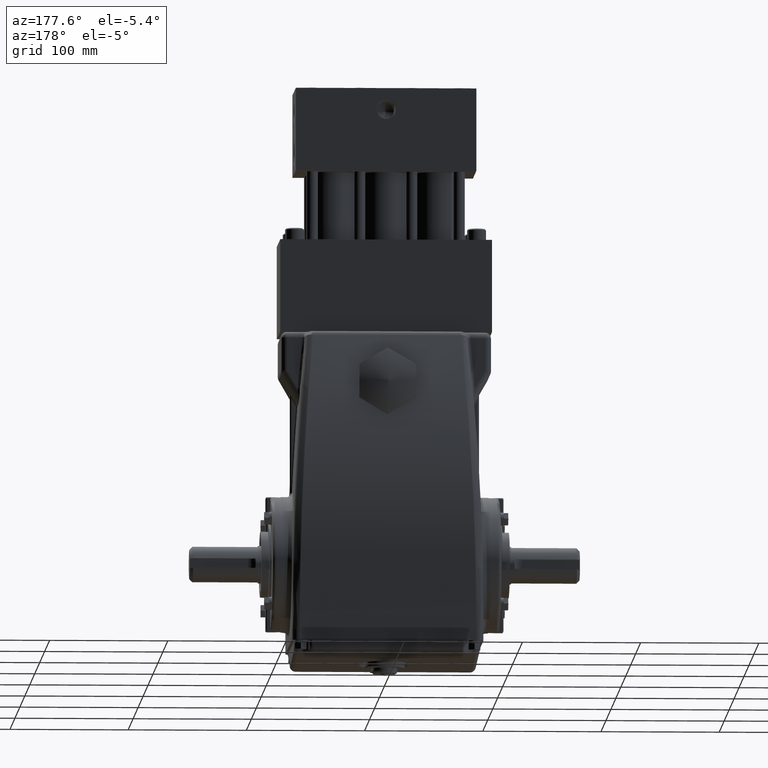
[diagram: clean part render]
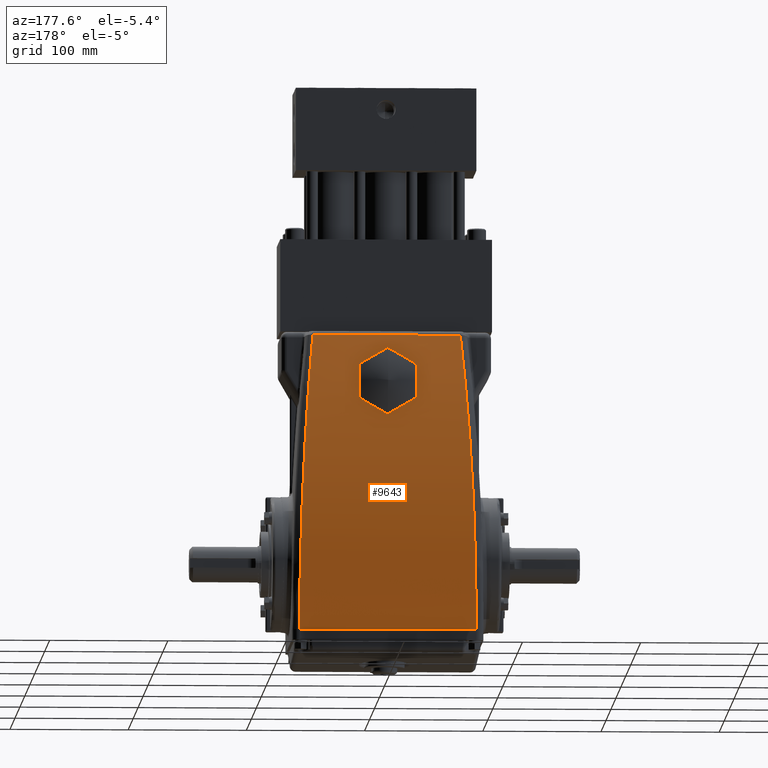
[diagram: same view with one face highlighted and labeled with its STEP entity id]
A machine part, auxiliary view. The second image highlights one B-rep face of the part: STEP entity #9643.
In plain terms, the highlighted cylindrical surface (partial cylindrical patch) has radius 639.229 mm, axis along (-1, -0, -0).
Its self-contained STEP definition (entity closure, byte-faithful):
#932 = EDGE_CURVE ( 'NONE', #5242, #933, #1359, .T. ) ;
#933 = VERTEX_POINT ( 'NONE', #1472 ) ;
#1184 = CARTESIAN_POINT ( 'NONE',  ( 0.8517757934792370400, 2.108280801860137600, 6.240792064630820600 ) ) ;
#1185 = CARTESIAN_POINT ( 'NONE',  ( 0.8181005592304403400, 2.087445381848458800, 6.322587077053034600 ) ) ;
#1186 = CARTESIAN_POINT ( 'NONE',  ( 0.7906391897728420900, 2.074063540767611800, 6.374358569648427100 ) ) ;
#1187 = CARTESIAN_POINT ( 'NONE',  ( 0.7419868299988811000, 2.054822962315945700, 6.447928650192186400 ) ) ;
#1188 = CARTESIAN_POINT ( 'NONE',  ( 0.7245173621476173100, 2.048549231577400300, 6.471766124279536600 ) ) ;
#1189 = CARTESIAN_POINT ( 'NONE',  ( 0.6869725999985825100, 2.036307987381356100, 6.518017488258418100 ) ) ;
#1190 = CARTESIAN_POINT ( 'NONE',  ( 0.6670991163208193100, 2.030409233493891500, 6.540171307052260000 ) ) ;
#1191 = CARTESIAN_POINT ( 'NONE',  ( 0.6046602473001231300, 2.013516503278723200, 6.603300938477125300 ) ) ;
#1192 = CARTESIAN_POINT ( 'NONE',  ( 0.5591324411271533200, 2.003261442565714900, 6.641190798329227500 ) ) ;
#1193 = CARTESIAN_POINT ( 'NONE',  ( 0.4847740287326998700, 1.989539841771109000, 6.691526486774064300 ) ) ;
#1194 = CARTESIAN_POINT ( 'NONE',  ( 0.4589020535937435300, 1.985239999719667000, 6.707230682562213000 ) ) ;
#1195 = CARTESIAN_POINT ( 'NONE',  ( 0.4062093949515993000, 1.977409396986109500, 6.735739667880783300 ) ) ;
#1196 = CARTESIAN_POINT ( 'NONE',  ( 0.3792605186048826900, 1.973852460362665700, 6.748640741269107400 ) ) ;
#1197 = CARTESIAN_POINT ( 'NONE',  ( 0.3241661716206601400, 1.967462945642187000, 6.771758641777292800 ) ) ;
#1198 = CARTESIAN_POINT ( 'NONE',  ( 0.2960207399706006300, 1.964630326790882000, 6.781975551621597400 ) ) ;
#1199 = CARTESIAN_POINT ( 'NONE',  ( 0.2528850248207239500, 1.960944824598500800, 6.795244794540070500 ) ) ;
#1353 = CARTESIAN_POINT ( 'NONE',  ( 0.2383532470191971600, 1.959810381822061600, 6.799324560531388800 ) ) ;
#1354 = CARTESIAN_POINT ( 'NONE',  ( 0.2089763331113513000, 1.957734985545953200, 6.806782203186477500 ) ) ;
#1355 = CARTESIAN_POINT ( 'NONE',  ( 0.1941285703221399500, 1.956794706008779400, 6.810157645767736400 ) ) ;
#1356 = CARTESIAN_POINT ( 'NONE',  ( 0.1199666194510869100, 1.952635561640561100, 6.825078899672415200 ) ) ;
#1357 = CARTESIAN_POINT ( 'NONE',  ( 0.06019901345989764300, 1.950978026408409100, 6.831000000000002200 ) ) ;
#1358 = CARTESIAN_POINT ( 'NONE',  ( 1.113167175992111200E-016, 1.950978026408414000, 6.831000000000001300 ) ) ;
#1359 = B_SPLINE_CURVE_WITH_KNOTS ( 'NONE', 3,
 ( #1358, #1357, #1356, #1355, #1354, #1353, #1199, #1198, #1197, #1196, #1195, #1194, #1193, #1192, #1191, #1190, #1189, #1188, #1187, #1186, #1185, #1184, #1508, #1469, #1445, #1525, #1548, #1547, #1394, #1510, #1497, #1424, #1483, #1468, #1537, #1536, #1535, #1534, #1531, #1529, #1528, #1453, #1452, #1451, #1450, #1449, #1448, #1447, #1446, #1476, #1475, #1474, #1473 ),
 .UNSPECIFIED., .F., .F.,
 ( 4, 2, 2, 2, 2, 2, 2, 2, 2, 2, 2, 2, 2, 2, 2, 2, 2, 2, 2, 2, 2, 2, 2, 1, 2, 2, 4 ),
 ( 0.07323747432878095800, 0.07781312574359033900, 0.07895703859729268100, 0.08010095145099502300, 0.08238877715839969300, 0.08467660286580437600, 0.08696442857320906000, 0.09154007998801841400, 0.09382790569542306900, 0.09611573140282772500, 0.1006913828176370900, 0.1029792085250418200, 0.1052670342324465400, 0.1075548599398512800, 0.1098426856472559900, 0.1144183370620654600, 0.1167061627694701800, 0.1189939884768749000, 0.1235696398916842600, 0.1258574655990890000, 0.1281452913064937100, 0.1327209427213032200, 0.1350087684287079600, 0.1372965941361127300, 0.1395844198435174700, 0.1418722455509222000, 0.1464478969657317100 ),
 .UNSPECIFIED. ) ;
#1394 = CARTESIAN_POINT ( 'NONE',  ( 0.9089016890682101200, 2.179102513485317200, 5.954433421610495700 ) ) ;
#1424 = CARTESIAN_POINT ( 'NONE',  ( 0.8870484928479697200, 2.234138019559917000, 5.721295107462867500 ) ) ;
#1445 = CARTESIAN_POINT ( 'NONE',  ( 0.8857709340454117400, 2.136538190174243300, 6.128257290813701600 ) ) ;
#1446 = CARTESIAN_POINT ( 'NONE',  ( 0.2399533658473135800, 2.380670768414104200, 5.044727895669766800 ) ) ;
#1447 = CARTESIAN_POINT ( 'NONE',  ( 0.2973671646305715600, 2.377071658935236100, 5.062490411794595200 ) ) ;
#1448 = CARTESIAN_POINT ( 'NONE',  ( 0.3536455693382720100, 2.372903442082730400, 5.083013441595604800 ) ) ;
#1449 = CARTESIAN_POINT ( 'NONE',  ( 0.4076790855175405100, 2.367589283973891700, 5.108990301730838000 ) ) ;
#1450 = CARTESIAN_POINT ( 'NONE',  ( 0.4605698370183412500, 2.361679017693298000, 5.137740839086317700 ) ) ;
#1451 = CARTESIAN_POINT ( 'NONE',  ( 0.4865331928323702900, 2.358409439395876100, 5.153581170012299300 ) ) ;
#1452 = CARTESIAN_POINT ( 'NONE',  ( 0.5609856053609131300, 2.347894658025491600, 5.204239361202379400 ) ) ;
#1453 = CARTESIAN_POINT ( 'NONE',  ( 0.6066093295016871100, 2.339901161320484800, 5.242406592726197800 ) ) ;
#1468 = CARTESIAN_POINT ( 'NONE',  ( 0.8633762237983368900, 2.253664459586032000, 5.636106770936366100 ) ) ;
#1469 = CARTESIAN_POINT ( 'NONE',  ( 0.8786912903937821300, 2.129469420640895700, 6.156614725826283800 ) ) ;
#1472 = CARTESIAN_POINT ( 'NONE',  ( -4.409404410949374200E-017, 2.387064806311963900, 5.013000000000001700 ) ) ;
#1473 = CARTESIAN_POINT ( 'NONE',  ( -4.409404410949374200E-017, 2.387064806311963900, 5.013000000000001700 ) ) ;
#1474 = CARTESIAN_POINT ( 'NONE',  ( 0.06091862091407402500, 2.387064806311964400, 5.013000000000001700 ) ) ;
#1475 = CARTESIAN_POINT ( 'NONE',  ( 0.1211987343724786300, 2.385848728853275300, 5.019064338800040700 ) ) ;
#1476 = CARTESIAN_POINT ( 'NONE',  ( 0.2106281532201455500, 2.382187878306547100, 5.037216401349407800 ) ) ;
#1483 = CARTESIAN_POINT ( 'NONE',  ( 0.8801150142891934800, 2.240713039612302300, 5.692759942707560600 ) ) ;
#1497 = CARTESIAN_POINT ( 'NONE',  ( 0.9036582546250285800, 2.214112355654957600, 5.807506816548604800 ) ) ;
#1508 = CARTESIAN_POINT ( 'NONE',  ( 0.8617259291214071100, 2.115359011934776900, 6.212810722753269000 ) ) ;
#1510 = CARTESIAN_POINT ( 'NONE',  ( 0.9091829015053198800, 2.200362619546657700, 5.865783627616114200 ) ) ;
#1525 = CARTESIAN_POINT ( 'NONE',  ( 0.8971744164616520800, 2.150695520373869100, 6.071031151307980000 ) ) ;
#1528 = CARTESIAN_POINT ( 'NONE',  ( 0.6691752636090975100, 2.326378444847853300, 5.306069211651325700 ) ) ;
#1529 = CARTESIAN_POINT ( 'NONE',  ( 0.6890694783415215500, 2.321607191910319400, 5.328396536947653100 ) ) ;
#1531 = CARTESIAN_POINT ( 'NONE',  ( 0.7267255027763007700, 2.311544602913317100, 5.375143656026438100 ) ) ;
#1534 = CARTESIAN_POINT ( 'NONE',  ( 0.7442163119553545400, 2.306327060162952900, 5.399220553680931000 ) ) ;
#1535 = CARTESIAN_POINT ( 'NONE',  ( 0.7928439997611752600, 2.290116547480759200, 5.473468545206567400 ) ) ;
#1536 = CARTESIAN_POINT ( 'NONE',  ( 0.8201704731908400200, 2.278570126145294900, 5.525638801299922200 ) ) ;
#1537 = CARTESIAN_POINT ( 'NONE',  ( 0.8535160628689436600, 2.260063141219357700, 5.607887708522959300 ) ) ;
#1547 = CARTESIAN_POINT ( 'NONE',  ( 0.9073618171074124800, 2.171977061460495000, 5.983907495216574700 ) ) ;
#1548 = CARTESIAN_POINT ( 'NONE',  ( 0.9014981939008296400, 2.157784091792514800, 6.042162437982915100 ) ) ;
#5242 = VERTEX_POINT ( 'NONE', #6195 ) ;
#6195 = CARTESIAN_POINT ( 'NONE',  ( 1.113167175992111200E-016, 1.950978026408414000, 6.831000000000001300 ) ) ;
#9621 = ORIENTED_EDGE ( 'NONE', *, *, #9716, .T. ) ;
#9622 = VERTEX_POINT ( 'NONE', #14310 ) ;
#9643 = ADVANCED_FACE ( 'NONE', ( #14552, #14606 ), #14435, .T. ) ;
#9644 = EDGE_LOOP ( 'NONE', ( #9646, #9621, #9717, #9720 ) ) ;
#9646 = ORIENTED_EDGE ( 'NONE', *, *, #9647, .T. ) ;
#9647 = EDGE_CURVE ( 'NONE', #9648, #9649, #14511, .T. ) ;
#9648 = VERTEX_POINT ( 'NONE', #14622 ) ;
#9649 = VERTEX_POINT ( 'NONE', #14508 ) ;
#9716 = EDGE_CURVE ( 'NONE', #9649, #9622, #14989, .T. ) ;
#9717 = ORIENTED_EDGE ( 'NONE', *, *, #9718, .T. ) ;
#9718 = EDGE_CURVE ( 'NONE', #9622, #9719, #14912, .T. ) ;
#9719 = VERTEX_POINT ( 'NONE', #14913 ) ;
#9720 = ORIENTED_EDGE ( 'NONE', *, *, #9721, .T. ) ;
#9721 = EDGE_CURVE ( 'NONE', #9719, #9648, #14914, .T. ) ;
#9722 = EDGE_LOOP ( 'NONE', ( #9723, #9739 ) ) ;
#9723 = ORIENTED_EDGE ( 'NONE', *, *, #9738, .F. ) ;
#9738 = EDGE_CURVE ( 'NONE', #933, #5242, #15023, .T. ) ;
#9739 = ORIENTED_EDGE ( 'NONE', *, *, #932, .F. ) ;
#14310 = CARTESIAN_POINT ( 'NONE',  ( 2.456251260754209300, 1.744187783766134100, 7.531408900364967400 ) ) ;
#14430 = CARTESIAN_POINT ( 'NONE',  ( 3.193499999999999800, -22.28638020889018300, 0.05584084378240967300 ) ) ;
#14435 = CYLINDRICAL_SURFACE ( 'NONE', #14683, 25.16649192514275800 ) ;
#14505 = CARTESIAN_POINT ( 'NONE',  ( -2.943497022694391100, 2.760000000000000200, -2.399999999999999500 ) ) ;
#14508 = CARTESIAN_POINT ( 'NONE',  ( -2.456251260754212000, 1.744187783766131500, 7.531408900364964700 ) ) ;
#14511 = B_SPLINE_CURVE_WITH_KNOTS ( 'NONE', 3,
 ( #14505, #14658, #14657, #14712, #14710, #14708, #14705, #14702, #14700, #14698, #14696, #14695, #14694, #14692 ),
 .UNSPECIFIED., .F., .F.,
 ( 4, 2, 2, 2, 2, 2, 4 ),
 ( 0.0000000000000000000, 0.06380452950073686700, 0.1276090590014737300, 0.1435601913766579600, 0.1595113237518421500, 0.1914135885022106000, 0.2552181180029476400 ),
 .UNSPECIFIED. ) ;
#14552 = FACE_OUTER_BOUND ( 'NONE', #9644, .T. ) ;
#14606 = FACE_BOUND ( 'NONE', #9722, .T. ) ;
#14622 = CARTESIAN_POINT ( 'NONE',  ( -2.943497022694391100, 2.760000000000000200, -2.399999999999999500 ) ) ;
#14657 = CARTESIAN_POINT ( 'NONE',  ( -2.932766785982741500, 2.881928847338860200, -0.7246864289694953100 ) ) ;
#14658 = CARTESIAN_POINT ( 'NONE',  ( -2.943294549154361800, 2.842153002086568800, -1.562146304891281800 ) ) ;
#14680 = DIRECTION ( 'NONE',  ( 0.0000000000000000000, 0.0000000000000000000, 1.000000000000000000 ) ) ;
#14681 = DIRECTION ( 'NONE',  ( -1.000000000000000000, -0.0000000000000000000, -0.0000000000000000000 ) ) ;
#14683 = AXIS2_PLACEMENT_3D ( 'NONE', #14430, #14681, #14680 ) ;
#14692 = CARTESIAN_POINT ( 'NONE',  ( -2.456251260754212000, 1.744187783766131500, 7.531408900364964700 ) ) ;
#14694 = CARTESIAN_POINT ( 'NONE',  ( -2.534730526252400900, 1.993004160495673400, 6.731576859049964100 ) ) ;
#14695 = CARTESIAN_POINT ( 'NONE',  ( -2.604561208543055600, 2.200986968268246800, 5.922575648521105400 ) ) ;
#14696 = CARTESIAN_POINT ( 'NONE',  ( -2.695430383664719100, 2.452282275439393400, 4.695371799025443800 ) ) ;
#14698 = CARTESIAN_POINT ( 'NONE',  ( -2.723407374558063600, 2.525914934188599100, 4.284016155582627100 ) ) ;
#14700 = CARTESIAN_POINT ( 'NONE',  ( -2.761789249520751000, 2.621063310477825100, 3.663521314228943600 ) ) ;
#14702 = CARTESIAN_POINT ( 'NONE',  ( -2.773985917073758400, 2.650228128813363300, 3.456112551218075300 ) ) ;
#14705 = CARTESIAN_POINT ( 'NONE',  ( -2.797165226809065000, 2.703423421427794800, 3.040132650988920800 ) ) ;
#14708 = CARTESIAN_POINT ( 'NONE',  ( -2.808151630450582500, 2.727461641403438700, 2.831485254637950500 ) ) ;
#14710 = CARTESIAN_POINT ( 'NONE',  ( -2.859959114952438600, 2.834629758026725500, 1.786128993240202900 ) ) ;
#14712 = CARTESIAN_POINT ( 'NONE',  ( -2.891099087228924200, 2.878167553110874800, 0.9494512215970263300 ) ) ;
#14912 = B_SPLINE_CURVE_WITH_KNOTS ( 'NONE', 3,
 ( #14923, #14951, #14950, #14949, #14948, #14947, #14946, #14945, #14944, #14943, #14942, #14941, #14940, #14939 ),
 .UNSPECIFIED., .F., .F.,
 ( 4, 2, 2, 2, 2, 2, 4 ),
 ( 0.003740821261270802400, 0.06754312791645178400, 0.09944428124404226800, 0.1153948579078375200, 0.1313454345716327800, 0.1951477412268138000, 0.2589500478819948300 ),
 .UNSPECIFIED. ) ;
#14913 = CARTESIAN_POINT ( 'NONE',  ( 2.943497022694405700, 2.759999999999999300, -2.399999999999999500 ) ) ;
#14914 = LINE ( 'NONE', #14926, #14925 ) ;
#14923 = CARTESIAN_POINT ( 'NONE',  ( 2.456251260754209300, 1.744187783766134100, 7.531408900364967400 ) ) ;
#14924 = DIRECTION ( 'NONE',  ( -1.000000000000000000, -0.0000000000000000000, -0.0000000000000000000 ) ) ;
#14925 = VECTOR ( 'NONE', #14924, 39.37007874015748100 ) ;
#14926 = CARTESIAN_POINT ( 'NONE',  ( 3.193499999999999800, 2.759999999999999300, -2.399999999999999500 ) ) ;
#14939 = CARTESIAN_POINT ( 'NONE',  ( 2.943497022694405700, 2.759999999999999300, -2.399999999999999500 ) ) ;
#14940 = CARTESIAN_POINT ( 'NONE',  ( 2.943294549154359200, 2.842153002086569300, -1.562146304891282900 ) ) ;
#14941 = CARTESIAN_POINT ( 'NONE',  ( 2.932766785982739300, 2.881928847338857100, -0.7246864289694977500 ) ) ;
#14942 = CARTESIAN_POINT ( 'NONE',  ( 2.891099087228921500, 2.878167553110873000, 0.9494512215970260000 ) ) ;
#14943 = CARTESIAN_POINT ( 'NONE',  ( 2.859959114952439000, 2.834629758026725000, 1.786128993240202200 ) ) ;
#14944 = CARTESIAN_POINT ( 'NONE',  ( 2.808151630450583800, 2.727461641403440100, 2.831485254637949600 ) ) ;
#14945 = CARTESIAN_POINT ( 'NONE',  ( 2.797165226809065400, 2.703423421427795200, 3.040132650988922200 ) ) ;
#14946 = CARTESIAN_POINT ( 'NONE',  ( 2.773985917073760200, 2.650228128813365100, 3.456112551218077900 ) ) ;
#14947 = CARTESIAN_POINT ( 'NONE',  ( 2.761789249520751000, 2.621063310477825600, 3.663521314228946200 ) ) ;
#14948 = CARTESIAN_POINT ( 'NONE',  ( 2.723407374558063100, 2.525914934188598200, 4.284016155582627100 ) ) ;
#14949 = CARTESIAN_POINT ( 'NONE',  ( 2.695430383664720900, 2.452282275439392900, 4.695371799025443800 ) ) ;
#14950 = CARTESIAN_POINT ( 'NONE',  ( 2.604561208543056500, 2.200986968268245900, 5.922575648521105400 ) ) ;
#14951 = CARTESIAN_POINT ( 'NONE',  ( 2.534730526252404000, 1.993004160495672500, 6.731576859049971200 ) ) ;
#14970 = CARTESIAN_POINT ( 'NONE',  ( -0.6898476817694960700, 2.321914963458062300, 5.327083818828058700 ) ) ;
#14971 = CARTESIAN_POINT ( 'NONE',  ( -0.6273283918528477200, 2.335420744392516100, 5.263498967015952900 ) ) ;
#14972 = CARTESIAN_POINT ( 'NONE',  ( -0.6053915001718359600, 2.339690528999224900, 5.243262414416941300 ) ) ;
#14973 = CARTESIAN_POINT ( 'NONE',  ( -0.5707883892244352000, 2.345748184376254700, 5.214393287646711200 ) ) ;
#14974 = CARTESIAN_POINT ( 'NONE',  ( -0.5589360943170633700, 2.347714675305267600, 5.204993285779259800 ) ) ;
#14975 = CARTESIAN_POINT ( 'NONE',  ( -0.5348571057501031500, 2.351498771338162100, 5.186856434295548500 ) ) ;
#14976 = CARTESIAN_POINT ( 'NONE',  ( -0.5226310738485539000, 2.353317056770623400, 5.178116545187323000 ) ) ;
#14977 = CARTESIAN_POINT ( 'NONE',  ( -0.4605830734748190800, 2.362050352721849500, 5.136034624447916900 ) ) ;
#14978 = CARTESIAN_POINT ( 'NONE',  ( -0.4080342407248917500, 2.367902177741132400, 5.107498352986705300 ) ) ;
#14979 = CARTESIAN_POINT ( 'NONE',  ( -0.3386759242074620100, 2.373853264469122100, 5.078313973966515100 ) ) ;
#14980 = CARTESIAN_POINT ( 'NONE',  ( -0.3246189692646583900, 2.374974598676266300, 5.072804344087361800 ) ) ;
#14981 = CARTESIAN_POINT ( 'NONE',  ( -0.2961266189181460700, 2.377078002715020700, 5.062453745982537600 ) ) ;
#14982 = CARTESIAN_POINT ( 'NONE',  ( -0.2816912565562855200, 2.378059433104494900, 5.057615884357026900 ) ) ;
#14983 = CARTESIAN_POINT ( 'NONE',  ( -0.2383120967310344800, 2.380762669023164700, 5.044273506075923800 ) ) ;
#14984 = CARTESIAN_POINT ( 'NONE',  ( -0.2091315831304873800, 2.382256833194206400, 5.036874770081643000 ) ) ;
#14985 = CARTESIAN_POINT ( 'NONE',  ( -0.1208248090535531900, 2.385848203517389400, 5.019066374355271700 ) ) ;
#14986 = DIRECTION ( 'NONE',  ( 1.000000000000000000, 0.0000000000000000000, 0.0000000000000000000 ) ) ;
#14987 = VECTOR ( 'NONE', #14986, 39.37007874015748100 ) ;
#14988 = CARTESIAN_POINT ( 'NONE',  ( 3.193499999999999800, 1.744187783766132800, 7.531408900364967400 ) ) ;
#14989 = LINE ( 'NONE', #14988, #14987 ) ;
#15021 = CARTESIAN_POINT ( 'NONE',  ( -0.06094113071118089500, 2.387064806311964800, 5.013000000000002600 ) ) ;
#15022 = CARTESIAN_POINT ( 'NONE',  ( -4.409404410949374200E-017, 2.387064806311963900, 5.013000000000001700 ) ) ;
#15023 = B_SPLINE_CURVE_WITH_KNOTS ( 'NONE', 3,
 ( #15022, #15021, #14985, #14984, #14983, #14982, #14981, #14980, #14979, #14978, #14977, #14976, #14975, #14974, #14973, #14972, #14971, #14970, #15041, #15042, #15025, #15024, #15050, #15135, #15127, #15109, #15055, #15069, #15054, #15159, #15066, #15130, #15043, #15080, #15131, #15056, #15065, #15079, #15068, #15067, #15129, #15128, #15053, #15052, #15051, #15040, #15039, #15038, #15037, #15036, #15035, #15034, #15033, #15064, #15063, #15062 ),
 .UNSPECIFIED., .F., .F.,
 ( 4, 2, 2, 2, 2, 2, 2, 2, 2, 2, 2, 2, 2, 2, 2, 2, 2, 2, 2, 2, 2, 2, 2, 2, 2, 2, 2, 4 ),
 ( 2.973467531863857400E-018, 0.004577342145548840200, 0.006866013218323261200, 0.008010348754710485500, 0.009154684291097708200, 0.01373202643664651000, 0.01487636197303369100, 0.01602069750942086700, 0.01830936858219522200, 0.02288671072774398800, 0.02746405287329275000, 0.02975272394606713600, 0.03204139501884151900, 0.03661873716439020800, 0.03890740823716459800, 0.04119607930993898100, 0.04577342145548776000, 0.04806209252826213600, 0.05035076360103652600, 0.05492810574658536100, 0.05721677681935981300, 0.05950544789213426500, 0.06179411896490872400, 0.06293845450129594000, 0.06408279003768316300, 0.06866013218323208100, 0.07094880325600651200, 0.07323747432878095800 ),
 .UNSPECIFIED. ) ;
#15024 = CARTESIAN_POINT ( 'NONE',  ( -0.8534324539605154800, 2.260110841419114000, 5.607676023350421700 ) ) ;
#15025 = CARTESIAN_POINT ( 'NONE',  ( -0.8202661798440962200, 2.278514410634289600, 5.525885802724186400 ) ) ;
#15033 = CARTESIAN_POINT ( 'NONE',  ( -0.1209562338335779800, 1.953092778038915600, 6.823430893097075500 ) ) ;
#15034 = CARTESIAN_POINT ( 'NONE',  ( -0.1508157817207694300, 1.954356637601468700, 6.818904586877893700 ) ) ;
#15035 = CARTESIAN_POINT ( 'NONE',  ( -0.2391380768782535000, 1.959337381648057000, 6.801035228020796600 ) ) ;
#15036 = CARTESIAN_POINT ( 'NONE',  ( -0.2963562513196323400, 1.964233783446078400, 6.783442364978713000 ) ) ;
#15037 = CARTESIAN_POINT ( 'NONE',  ( -0.3657859172286479500, 1.972290747757009100, 6.754291099165111900 ) ) ;
#15038 = CARTESIAN_POINT ( 'NONE',  ( -0.3796049853925940700, 1.974005008629388500, 6.748080438013030100 ) ) ;
#15039 = CARTESIAN_POINT ( 'NONE',  ( -0.4068227419465902900, 1.977603519359864700, 6.735021581286603400 ) ) ;
#15040 = CARTESIAN_POINT ( 'NONE',  ( -0.4202027916140116900, 1.979484516023834100, 6.728185239037919100 ) ) ;
#15041 = CARTESIAN_POINT ( 'NONE',  ( -0.7271696130492558700, 2.311989265285586500, 5.373280342611817400 ) ) ;
#15042 = CARTESIAN_POINT ( 'NONE',  ( -0.7928856574578995200, 2.290122891592486300, 5.473445384881659800 ) ) ;
#15043 = CARTESIAN_POINT ( 'NONE',  ( -0.8630678579155007800, 2.115281714666974500, 6.213305103333768300 ) ) ;
#15050 = CARTESIAN_POINT ( 'NONE',  ( -0.8631681233669658000, 2.253807785415568700, 5.635476531641976400 ) ) ;
#15051 = CARTESIAN_POINT ( 'NONE',  ( -0.4596739657949556700, 1.985363982195574600, 6.706778279555239300 ) ) ;
#15052 = CARTESIAN_POINT ( 'NONE',  ( -0.4850977478690645100, 1.989598378746269000, 6.691311928234813200 ) ) ;
#15053 = CARTESIAN_POINT ( 'NONE',  ( -0.5342153774113590500, 1.998664620079203300, 6.658053393748879500 ) ) ;
#15054 = CARTESIAN_POINT ( 'NONE',  ( -0.9074004043012595700, 2.172080821486309900, 5.983480920390118900 ) ) ;
#15055 = CARTESIAN_POINT ( 'NONE',  ( -0.9091747158677018200, 2.200262499143756500, 5.866199982494003400 ) ) ;
#15056 = CARTESIAN_POINT ( 'NONE',  ( -0.7892017642101627500, 2.074116618112369800, 6.374007822525734400 ) ) ;
#15062 = CARTESIAN_POINT ( 'NONE',  ( 1.113167175992111200E-016, 1.950978026408414000, 6.831000000000001300 ) ) ;
#15063 = CARTESIAN_POINT ( 'NONE',  ( -0.03011062867885902100, 1.950978026408409800, 6.831000000000004800 ) ) ;
#15064 = CARTESIAN_POINT ( 'NONE',  ( -0.06036436288389628700, 1.951396256511930900, 6.829504385238230700 ) ) ;
#15065 = CARTESIAN_POINT ( 'NONE',  ( -0.7741894006304339500, 2.067552848994168400, 6.399254716920006900 ) ) ;
#15066 = CARTESIAN_POINT ( 'NONE',  ( -0.8971205735998302200, 2.150612593607331000, 6.071368364416224000 ) ) ;
#15067 = CARTESIAN_POINT ( 'NONE',  ( -0.6255942389909316900, 2.019175113094801200, 6.582155272560283000 ) ) ;
#15068 = CARTESIAN_POINT ( 'NONE',  ( -0.6885755889040872100, 2.036229858688955100, 6.518416969373373800 ) ) ;
#15069 = CARTESIAN_POINT ( 'NONE',  ( -0.9089062789678782300, 2.179190860019006900, 5.954065597366367900 ) ) ;
#15079 = CARTESIAN_POINT ( 'NONE',  ( -0.7256229878045712400, 2.048362211239363400, 6.472630049173839800 ) ) ;
#15080 = CARTESIAN_POINT ( 'NONE',  ( -0.8294904179297650800, 2.094485373935808200, 6.294951195482053000 ) ) ;
#15109 = CARTESIAN_POINT ( 'NONE',  ( -0.9037432009098045300, 2.214005325245943300, 5.807966997475511500 ) ) ;
#15127 = CARTESIAN_POINT ( 'NONE',  ( -0.8870219665663053900, 2.234172305032936700, 5.721147801747887000 ) ) ;
#15128 = CARTESIAN_POINT ( 'NONE',  ( -0.5579091119424136600, 2.003496526433777600, 6.640261064878384200 ) ) ;
#15129 = CARTESIAN_POINT ( 'NONE',  ( -0.6035658442621658600, 2.013742838340907500, 6.602345357997466900 ) ) ;
#15130 = CARTESIAN_POINT ( 'NONE',  ( -0.8799362627115117100, 2.129326996522435100, 6.157401998766277800 ) ) ;
#15131 = CARTESIAN_POINT ( 'NONE',  ( -0.8168372613633398900, 2.087569547498799900, 6.321909220580533200 ) ) ;
#15135 = CARTESIAN_POINT ( 'NONE',  ( -0.8799607901466889300, 2.240849679638524400, 5.692165461861852900 ) ) ;
#15159 = CARTESIAN_POINT ( 'NONE',  ( -0.9014861738255250900, 2.157744684189522000, 6.042324875647230100 ) ) ;